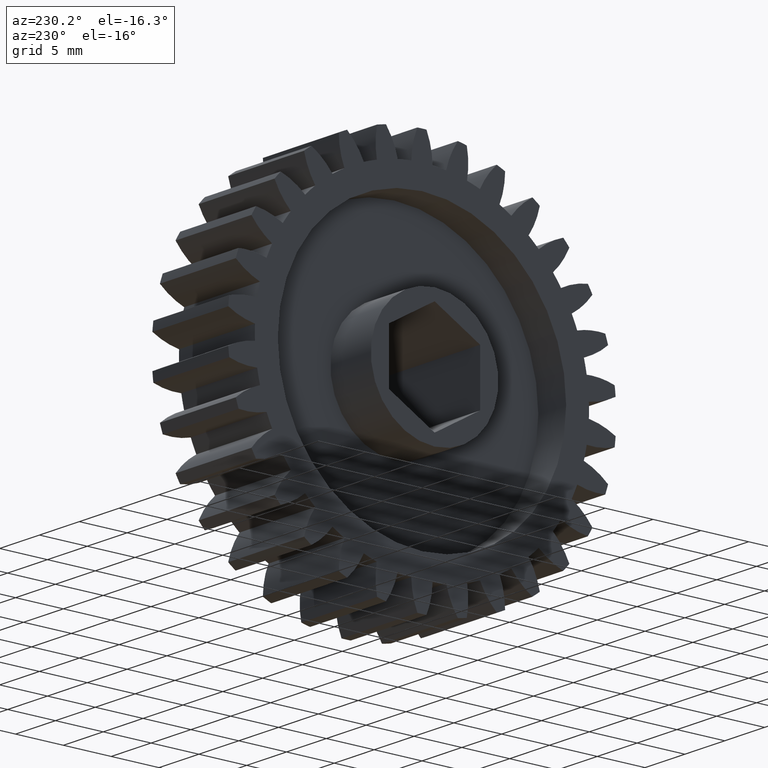
[diagram: clean part render]
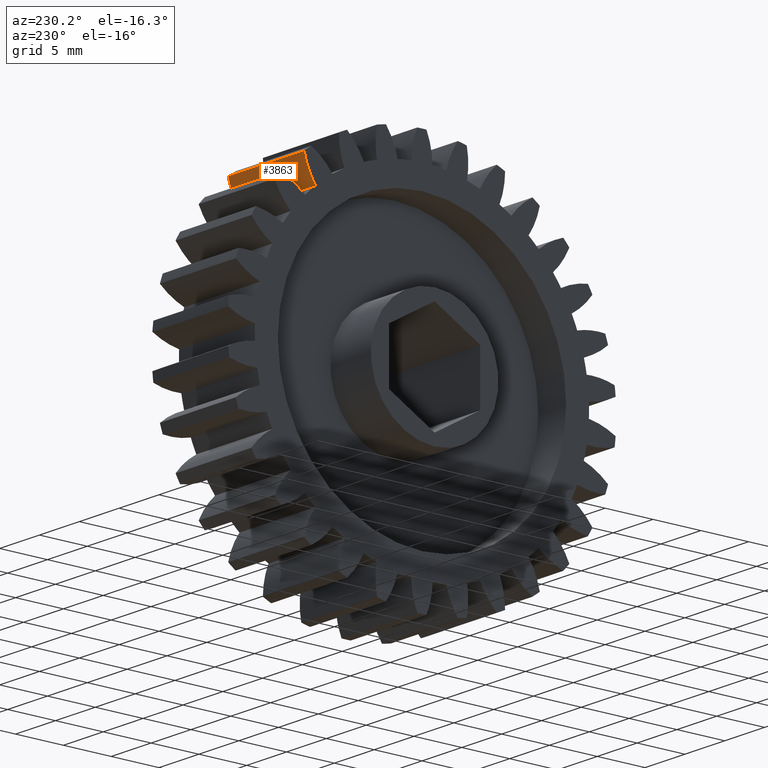
[diagram: same view with one face highlighted and labeled with its STEP entity id]
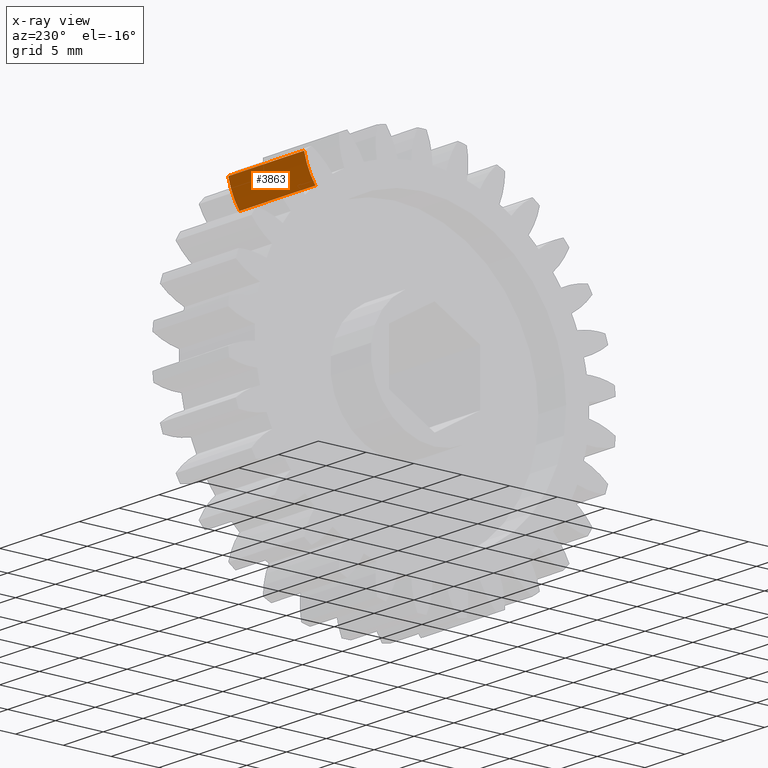
[diagram: x-ray of the same camera — body ghosted, the highlighted face saturated]
A machine part, auxiliary view. The second image highlights one B-rep face of the part: STEP entity #3863.
The next image is the same camera in x-ray: the body ghosted, the highlighted face saturated — about 0% of this face is hidden behind the body in this view.
In plain terms, the highlighted cylindrical surface (partial cylindrical patch) has radius 7.62 mm, axis along (-1, 0, 0).
Its self-contained STEP definition (entity closure, byte-faithful):
#53 = ORIENTED_EDGE ( 'NONE', *, *, #3735, .T. ) ;
#204 = CIRCLE ( 'NONE', #2249, 0.2999999999999999300 ) ;
#417 = VERTEX_POINT ( 'NONE', #4857 ) ;
#454 = DIRECTION ( 'NONE',  ( -1.000000000000000000, 0.0000000000000000000, 0.0000000000000000000 ) ) ;
#529 = CARTESIAN_POINT ( 'NONE',  ( 0.3750000000000000600, 0.4390657669892473700, 0.5296841061030092000 ) ) ;
#1262 = DIRECTION ( 'NONE',  ( 0.0000000000000000000, 0.0000000000000000000, 1.000000000000000000 ) ) ;
#1264 = CARTESIAN_POINT ( 'NONE',  ( 0.3750000000000000600, 0.1922378879617554200, 0.7002009619700753100 ) ) ;
#1412 = CIRCLE ( 'NONE', #2536, 0.2999999999999999300 ) ;
#1738 = VECTOR ( 'NONE', #454, 39.37007874015748100 ) ;
#1745 = LINE ( 'NONE', #529, #1738 ) ;
#1843 = DIRECTION ( 'NONE',  ( -1.000000000000000000, 0.0000000000000000000, 0.0000000000000000000 ) ) ;
#1995 = DIRECTION ( 'NONE',  ( 0.0000000000000000000, 0.0000000000000000000, 1.000000000000000000 ) ) ;
#2005 = DIRECTION ( 'NONE',  ( -1.000000000000000000, 0.0000000000000000000, 0.0000000000000000000 ) ) ;
#2013 = CARTESIAN_POINT ( 'NONE',  ( 0.3750000000000000600, 0.1922378879617554200, 0.7002009619700753100 ) ) ;
#2067 = AXIS2_PLACEMENT_3D ( 'NONE', #1264, #1843, #1262 ) ;
#2070 = EDGE_CURVE ( 'NONE', #2963, #417, #3608, .T. ) ;
#2249 = AXIS2_PLACEMENT_3D ( 'NONE', #2013, #2005, #1995 ) ;
#2438 = EDGE_CURVE ( 'NONE', #3097, #4442, #1745, .T. ) ;
#2536 = AXIS2_PLACEMENT_3D ( 'NONE', #3586, #3539, #3581 ) ;
#2639 = CARTESIAN_POINT ( 'NONE',  ( 0.3750000000000000600, 0.4852877421385534700, 0.6359998485299071000 ) ) ;
#2676 = DIRECTION ( 'NONE',  ( 1.000000000000000000, -0.0000000000000000000, -0.0000000000000000000 ) ) ;
#2726 = ORIENTED_EDGE ( 'NONE', *, *, #2070, .T. ) ;
#2732 = CARTESIAN_POINT ( 'NONE',  ( 0.3750000000000000600, 0.4390657669892472600, 0.5296841061030092000 ) ) ;
#2963 = VERTEX_POINT ( 'NONE', #3929 ) ;
#3097 = VERTEX_POINT ( 'NONE', #2732 ) ;
#3493 = VECTOR ( 'NONE', #2676, 39.37007874015748100 ) ;
#3539 = DIRECTION ( 'NONE',  ( 1.000000000000000000, -0.0000000000000000000, -0.0000000000000000000 ) ) ;
#3548 = EDGE_CURVE ( 'NONE', #4442, #2963, #1412, .T. ) ;
#3581 = DIRECTION ( 'NONE',  ( 0.0000000000000000000, 3.528636991816341000E-015, 1.000000000000000000 ) ) ;
#3586 = CARTESIAN_POINT ( 'NONE',  ( 0.0000000000000000000, 0.1922378879617554200, 0.7002009619700753100 ) ) ;
#3608 = LINE ( 'NONE', #2639, #3493 ) ;
#3735 = EDGE_CURVE ( 'NONE', #417, #3097, #204, .T. ) ;
#3850 = CYLINDRICAL_SURFACE ( 'NONE', #2067, 0.2999999999999999300 ) ;
#3863 = ADVANCED_FACE ( 'NONE', ( #4123 ), #3850, .T. ) ;
#3929 = CARTESIAN_POINT ( 'NONE',  ( 0.0000000000000000000, 0.4852877421385536900, 0.6359998485299069900 ) ) ;
#4123 = FACE_OUTER_BOUND ( 'NONE', #4290, .T. ) ;
#4192 = CARTESIAN_POINT ( 'NONE',  ( 0.0000000000000000000, 0.4390657669892472600, 0.5296841061030092000 ) ) ;
#4290 = EDGE_LOOP ( 'NONE', ( #4720, #4795, #2726, #53 ) ) ;
#4442 = VERTEX_POINT ( 'NONE', #4192 ) ;
#4720 = ORIENTED_EDGE ( 'NONE', *, *, #2438, .T. ) ;
#4795 = ORIENTED_EDGE ( 'NONE', *, *, #3548, .T. ) ;
#4857 = CARTESIAN_POINT ( 'NONE',  ( 0.3750000000000000600, 0.4852877421385536900, 0.6359998485299069900 ) ) ;